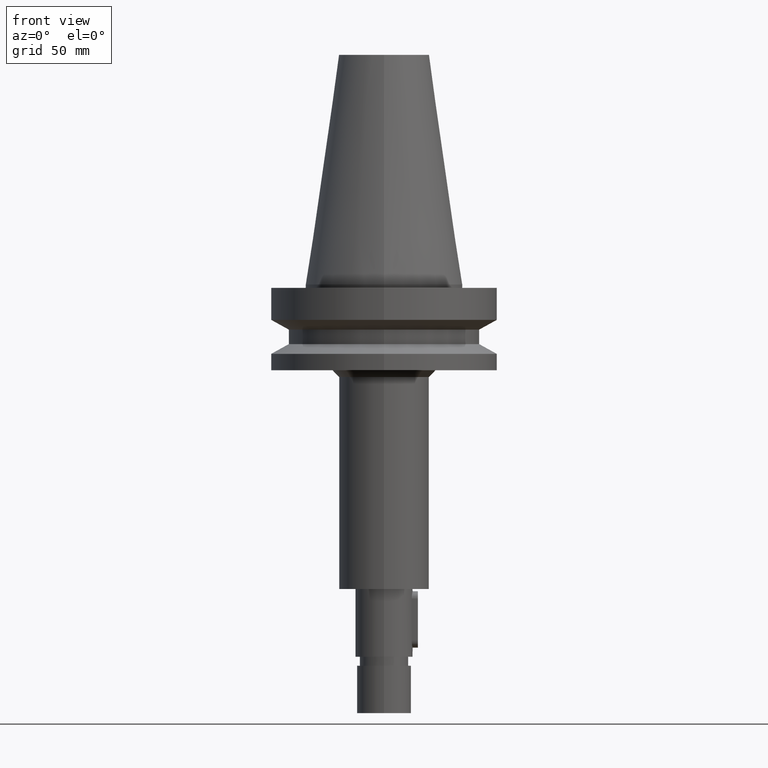
[diagram: clean part render]
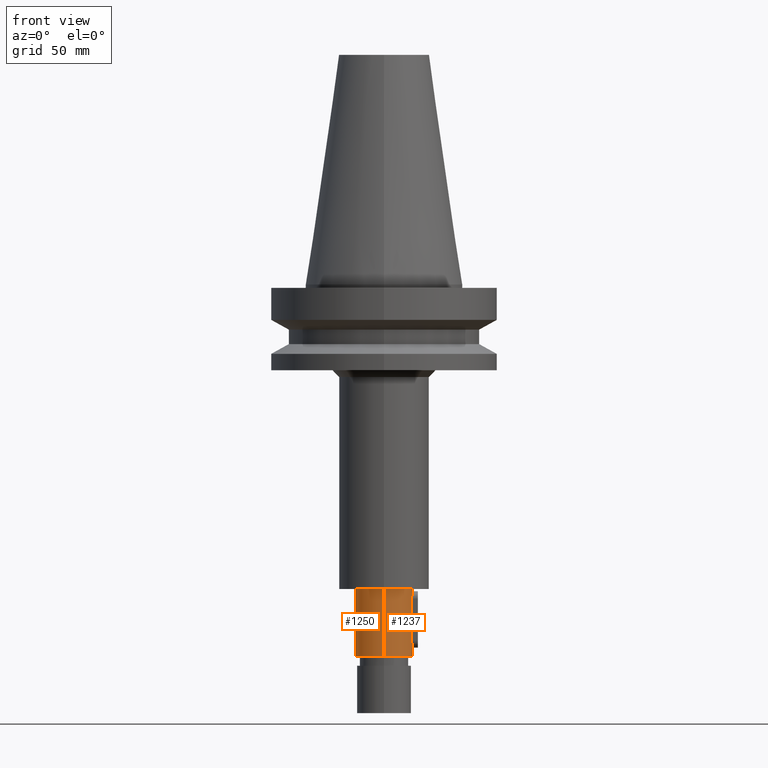
[diagram: same view with one multi-face feature highlighted, each face labeled with its STEP entity id]
A machine part, front view. The highlighted faces form ONE feature: a constant-radius fillet chain: 2 tangent blend faces with common blend radius 12.7 mm. The faces share edges in the B-rep.
Their STEP definitions:
[1] entity #1237 (Cylinder):
#428=CARTESIAN_POINT('',(0.E0,2.650013208675E-14,-1.35E2));
#429=DIRECTION('',(0.E0,0.E0,-1.E0));
#430=DIRECTION('',(0.E0,1.E0,0.E0));
#431=AXIS2_PLACEMENT_3D('',#428,#429,#430);
#444=DIRECTION('',(0.E0,0.E0,-1.E0));
#445=VECTOR('',#444,3.E1);
#446=CARTESIAN_POINT('',(0.E0,1.27E1,-1.35E2));
#447=LINE('',#446,#445);
#451=DIRECTION('',(0.E0,0.E0,-1.E0));
#452=VECTOR('',#451,1.865E1);
#453=CARTESIAN_POINT('',(1.229672212421E1,-3.175E0,-1.39175E2));
#454=LINE('',#453,#452);
#458=DIRECTION('',(0.E0,0.E0,1.E0));
#459=VECTOR('',#458,1.865E1);
#460=CARTESIAN_POINT('',(1.229672212421E1,3.175E0,-1.57825E2));
#461=LINE('',#460,#459);
#465=DIRECTION('',(0.E0,0.E0,-1.E0));
#466=VECTOR('',#465,3.E1);
#467=CARTESIAN_POINT('',(0.E0,-1.27E1,-1.35E2));
#468=LINE('',#467,#466);
#480=CARTESIAN_POINT('',(0.E0,2.650013208675E-14,-1.65E2));
#481=DIRECTION('',(0.E0,0.E0,1.E0));
#482=DIRECTION('',(0.E0,-1.E0,0.E0));
#483=AXIS2_PLACEMENT_3D('',#480,#481,#482);
#580=CARTESIAN_POINT('',(1.229672212421E1,-3.175E0,-1.39175E2));
#581=CARTESIAN_POINT('',(1.229672212421E1,-3.175E0,-1.388498147639E2));
#582=CARTESIAN_POINT('',(1.232324215615E1,-3.075246639774E0,-1.381947385076E2));
#583=CARTESIAN_POINT('',(1.243218184237E1,-2.617061022340E0,-1.372853543099E2));
#584=CARTESIAN_POINT('',(1.256513422748E1,-1.907339057315E0,-1.365704893311E2));
#585=CARTESIAN_POINT('',(1.267340293883E1,-9.958308565031E-1,
-1.361036650719E2));
#586=CARTESIAN_POINT('',(1.27E1,-3.312869076259E-1,-1.36E2));
#587=CARTESIAN_POINT('',(1.27E1,0.E0,-1.36E2));
#592=CARTESIAN_POINT('',(1.27E1,0.E0,-1.36E2));
#593=CARTESIAN_POINT('',(1.27E1,3.254575511199E-1,-1.36E2));
#594=CARTESIAN_POINT('',(1.267435649866E1,9.808601733695E-1,-1.360999834579E2));
#595=CARTESIAN_POINT('',(1.256788442172E1,1.889417865394E0,-1.365578624499E2));
#596=CARTESIAN_POINT('',(1.243494177085E1,2.604585073970E0,-1.372675651567E2));
#597=CARTESIAN_POINT('',(1.232418787502E1,3.071731316148E0,-1.381802665666E2));
#598=CARTESIAN_POINT('',(1.229672212421E1,3.175E0,-1.388442151567E2));
#599=CARTESIAN_POINT('',(1.229672212421E1,3.175E0,-1.39175E2));
#618=CARTESIAN_POINT('',(1.229672212421E1,3.175E0,-1.57825E2));
#619=CARTESIAN_POINT('',(1.229672212421E1,3.175E0,-1.581501856648E2));
#620=CARTESIAN_POINT('',(1.232324225063E1,3.075246247683E0,-1.588052625655E2));
#621=CARTESIAN_POINT('',(1.243218187301E1,2.617060920900E0,-1.597146458947E2));
#622=CARTESIAN_POINT('',(1.256513448277E1,1.907337570362E0,-1.604295119453E2));
#623=CARTESIAN_POINT('',(1.267340307456E1,9.958289430475E-1,-1.608963354389E2));
#624=CARTESIAN_POINT('',(1.27E1,3.312860801013E-1,-1.61E2));
#625=CARTESIAN_POINT('',(1.27E1,0.E0,-1.61E2));
#630=CARTESIAN_POINT('',(1.27E1,0.E0,-1.61E2));
#631=CARTESIAN_POINT('',(1.27E1,-3.254563373006E-1,-1.61E2));
#632=CARTESIAN_POINT('',(1.267435666967E1,-9.808570219601E-1,
-1.609000171834E2));
#633=CARTESIAN_POINT('',(1.256788519162E1,-1.889412819408E0,-1.604421410378E2));
#634=CARTESIAN_POINT('',(1.243494229499E1,-2.604582876369E0,-1.597324386657E2));
#635=CARTESIAN_POINT('',(1.232418774963E1,-3.071731844576E0,-1.588197328625E2));
#636=CARTESIAN_POINT('',(1.229672212421E1,-3.175E0,-1.581557843416E2));
#637=CARTESIAN_POINT('',(1.229672212421E1,-3.175E0,-1.57825E2));
#766=CARTESIAN_POINT('',(0.E0,1.27E1,-1.35E2));
#767=CARTESIAN_POINT('',(0.E0,-1.27E1,-1.35E2));
#768=VERTEX_POINT('',#766);
#769=VERTEX_POINT('',#767);
#770=CARTESIAN_POINT('',(0.E0,1.27E1,-1.65E2));
#771=VERTEX_POINT('',#770);
#772=CARTESIAN_POINT('',(0.E0,-1.27E1,-1.65E2));
#773=VERTEX_POINT('',#772);
#774=VERTEX_POINT('',#592);
#775=VERTEX_POINT('',#599);
#776=VERTEX_POINT('',#580);
#777=CARTESIAN_POINT('',(1.229672212421E1,-3.175E0,-1.57825E2));
#778=VERTEX_POINT('',#777);
#779=VERTEX_POINT('',#630);
#780=VERTEX_POINT('',#618);
#1209=CARTESIAN_POINT('',(0.E0,2.650013208675E-14,1.1639E2));
#1210=DIRECTION('',(0.E0,0.E0,-1.E0));
#1211=DIRECTION('',(0.E0,-1.E0,0.E0));
#1212=AXIS2_PLACEMENT_3D('',#1209,#1210,#1211);
#1213=CYLINDRICAL_SURFACE('',#1212,1.27E1);
#1215=ORIENTED_EDGE('',*,*,#1214,.T.);
#1217=ORIENTED_EDGE('',*,*,#1216,.F.);
#1219=ORIENTED_EDGE('',*,*,#1218,.F.);
#1220=ORIENTED_EDGE('',*,*,#1202,.F.);
#1221=EDGE_LOOP('',(#1215,#1217,#1219,#1220));
#1222=FACE_OUTER_BOUND('',#1221,.F.);
#1224=ORIENTED_EDGE('',*,*,#1223,.F.);
#1226=ORIENTED_EDGE('',*,*,#1225,.F.);
#1228=ORIENTED_EDGE('',*,*,#1227,.T.);
#1230=ORIENTED_EDGE('',*,*,#1229,.F.);
#1232=ORIENTED_EDGE('',*,*,#1231,.F.);
#1234=ORIENTED_EDGE('',*,*,#1233,.T.);
#1235=EDGE_LOOP('',(#1224,#1226,#1228,#1230,#1232,#1234));
#1236=FACE_BOUND('',#1235,.F.);
#432=CIRCLE('',#431,1.27E1);
#484=CIRCLE('',#483,1.27E1);
#588=B_SPLINE_CURVE_WITH_KNOTS('',3,(#580,#581,#582,#583,#584,#585,#586,#587),
.UNSPECIFIED.,.F.,.F.,(4,1,1,1,1,4),(0.E0,2.E-1,4.E-1,6.E-1,8.E-1,1.E0),
.UNSPECIFIED.);
#600=B_SPLINE_CURVE_WITH_KNOTS('',3,(#592,#593,#594,#595,#596,#597,#598,#599),
.UNSPECIFIED.,.F.,.F.,(4,1,1,1,1,4),(0.E0,2.E-1,4.E-1,6.E-1,8.E-1,1.E0),
.UNSPECIFIED.);
#626=B_SPLINE_CURVE_WITH_KNOTS('',3,(#618,#619,#620,#621,#622,#623,#624,#625),
.UNSPECIFIED.,.F.,.F.,(4,1,1,1,1,4),(0.E0,2.E-1,4.E-1,6.E-1,8.E-1,1.E0),
.UNSPECIFIED.);
#638=B_SPLINE_CURVE_WITH_KNOTS('',3,(#630,#631,#632,#633,#634,#635,#636,#637),
.UNSPECIFIED.,.F.,.F.,(4,1,1,1,1,4),(0.E0,2.E-1,4.E-1,6.E-1,8.E-1,1.E0),
.UNSPECIFIED.);
#1202=EDGE_CURVE('',#768,#769,#432,.T.);
#1214=EDGE_CURVE('',#768,#771,#447,.T.);
#1216=EDGE_CURVE('',#773,#771,#484,.T.);
#1218=EDGE_CURVE('',#769,#773,#468,.T.);
#1223=EDGE_CURVE('',#774,#775,#600,.T.);
#1225=EDGE_CURVE('',#776,#774,#588,.T.);
#1227=EDGE_CURVE('',#776,#778,#454,.T.);
#1229=EDGE_CURVE('',#779,#778,#638,.T.);
#1231=EDGE_CURVE('',#780,#779,#626,.T.);
#1233=EDGE_CURVE('',#780,#775,#461,.T.);
#1237=ADVANCED_FACE('',(#1222,#1236),#1213,.T.);
[2] entity #1250 (Cylinder):
#436=CARTESIAN_POINT('',(0.E0,2.650013208675E-14,-1.35E2));
#437=DIRECTION('',(0.E0,0.E0,-1.E0));
#438=DIRECTION('',(0.E0,-1.E0,0.E0));
#439=AXIS2_PLACEMENT_3D('',#436,#437,#438);
#444=DIRECTION('',(0.E0,0.E0,-1.E0));
#445=VECTOR('',#444,3.E1);
#446=CARTESIAN_POINT('',(0.E0,1.27E1,-1.35E2));
#447=LINE('',#446,#445);
#465=DIRECTION('',(0.E0,0.E0,-1.E0));
#466=VECTOR('',#465,3.E1);
#467=CARTESIAN_POINT('',(0.E0,-1.27E1,-1.35E2));
#468=LINE('',#467,#466);
#472=CARTESIAN_POINT('',(0.E0,2.650013208675E-14,-1.65E2));
#473=DIRECTION('',(0.E0,0.E0,1.E0));
#474=DIRECTION('',(0.E0,1.E0,0.E0));
#475=AXIS2_PLACEMENT_3D('',#472,#473,#474);
#766=CARTESIAN_POINT('',(0.E0,1.27E1,-1.35E2));
#767=CARTESIAN_POINT('',(0.E0,-1.27E1,-1.35E2));
#768=VERTEX_POINT('',#766);
#769=VERTEX_POINT('',#767);
#770=CARTESIAN_POINT('',(0.E0,1.27E1,-1.65E2));
#771=VERTEX_POINT('',#770);
#772=CARTESIAN_POINT('',(0.E0,-1.27E1,-1.65E2));
#773=VERTEX_POINT('',#772);
#1238=CARTESIAN_POINT('',(0.E0,2.650013208675E-14,1.1639E2));
#1239=DIRECTION('',(0.E0,0.E0,-1.E0));
#1240=DIRECTION('',(0.E0,-1.E0,0.E0));
#1241=AXIS2_PLACEMENT_3D('',#1238,#1239,#1240);
#1242=CYLINDRICAL_SURFACE('',#1241,1.27E1);
#1243=ORIENTED_EDGE('',*,*,#1214,.F.);
#1244=ORIENTED_EDGE('',*,*,#1204,.F.);
#1245=ORIENTED_EDGE('',*,*,#1218,.T.);
#1247=ORIENTED_EDGE('',*,*,#1246,.F.);
#1248=EDGE_LOOP('',(#1243,#1244,#1245,#1247));
#1249=FACE_OUTER_BOUND('',#1248,.F.);
#440=CIRCLE('',#439,1.27E1);
#476=CIRCLE('',#475,1.27E1);
#1204=EDGE_CURVE('',#769,#768,#440,.T.);
#1214=EDGE_CURVE('',#768,#771,#447,.T.);
#1218=EDGE_CURVE('',#769,#773,#468,.T.);
#1246=EDGE_CURVE('',#771,#773,#476,.T.);
#1250=ADVANCED_FACE('',(#1249),#1242,.T.);